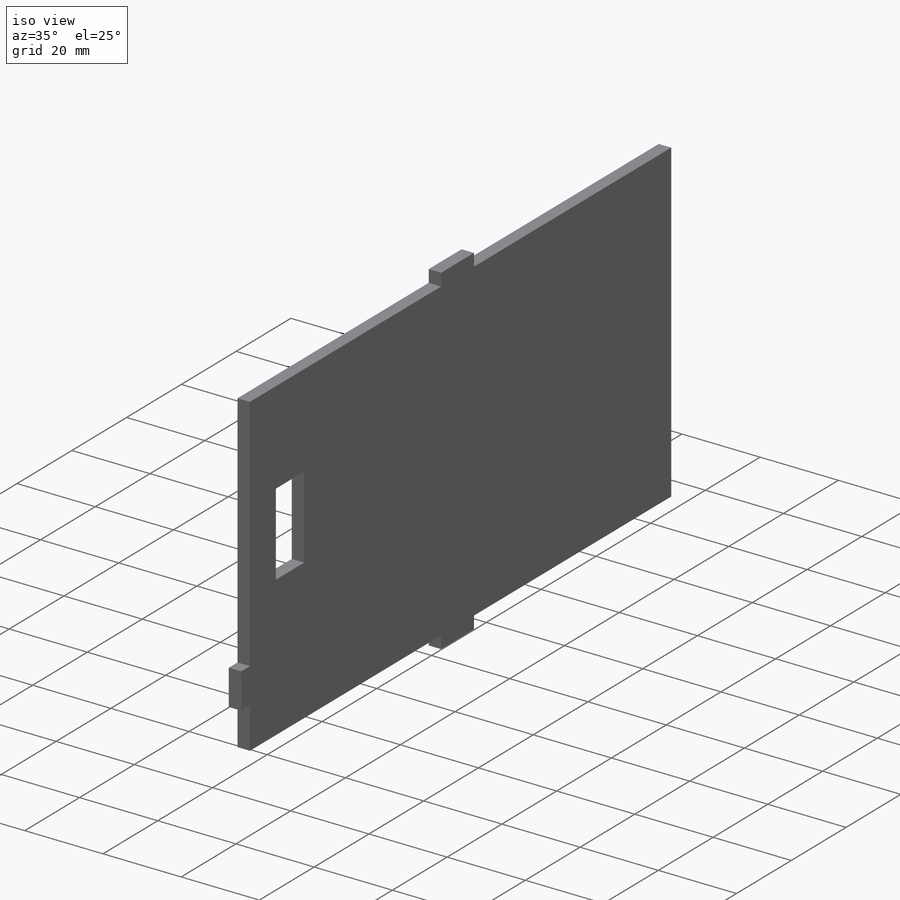
[diagram: iso view]
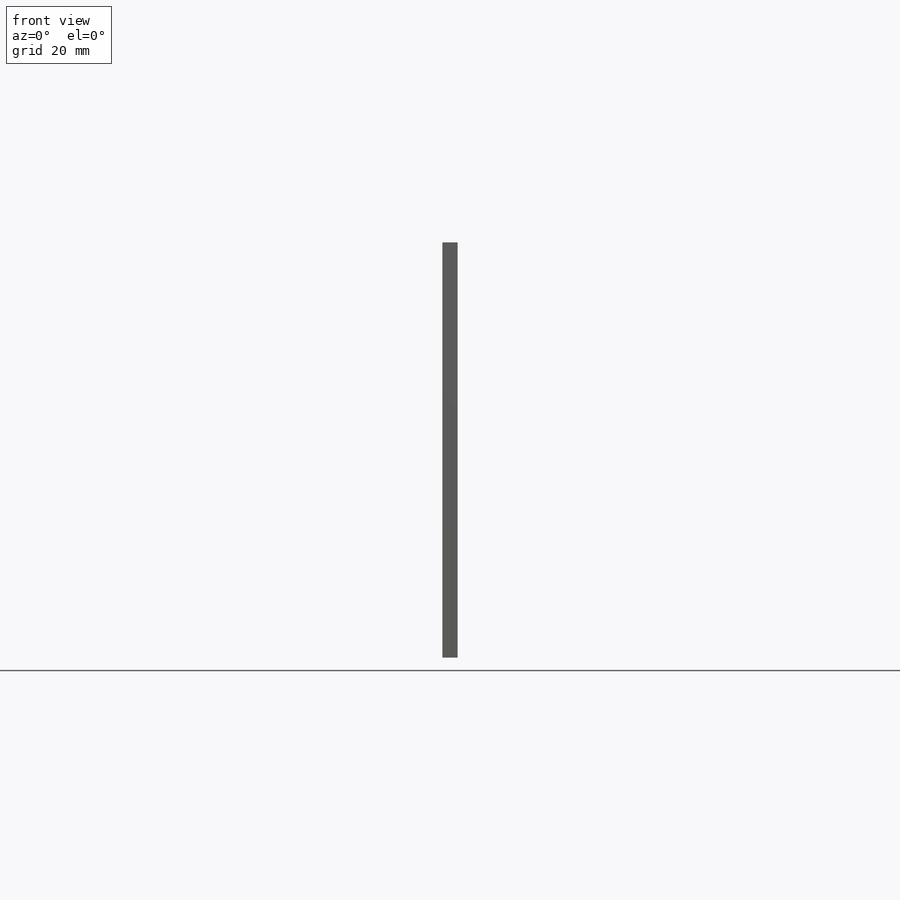
[diagram: front view]
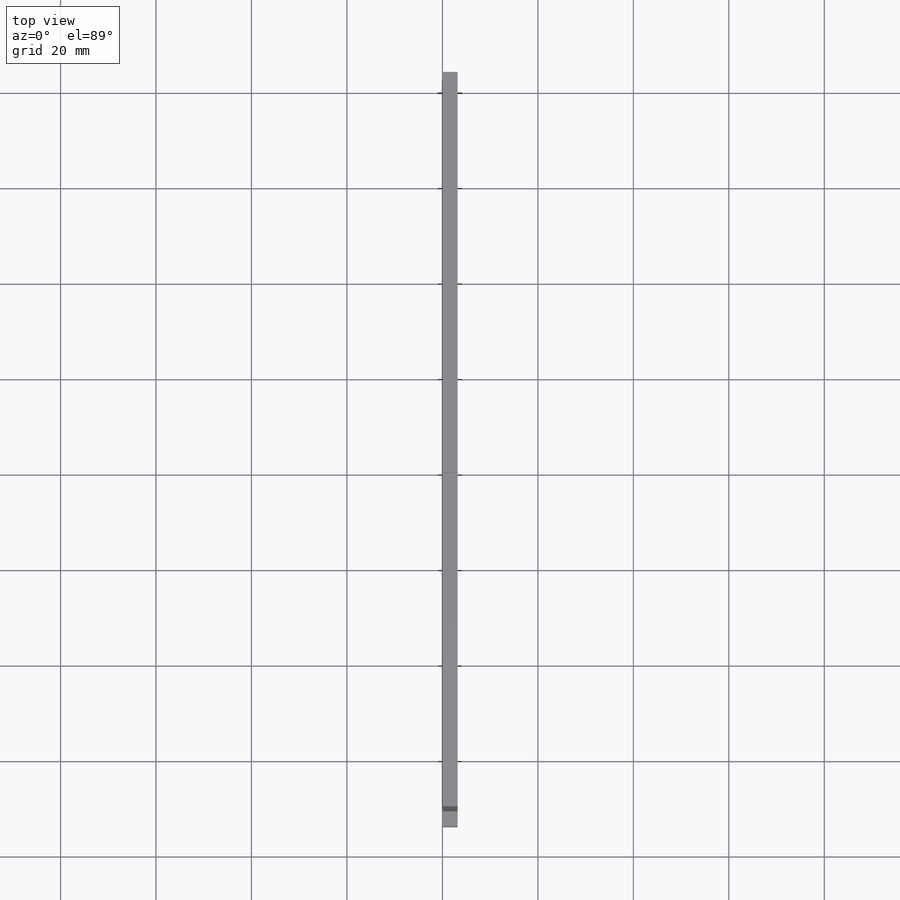
[diagram: top view]
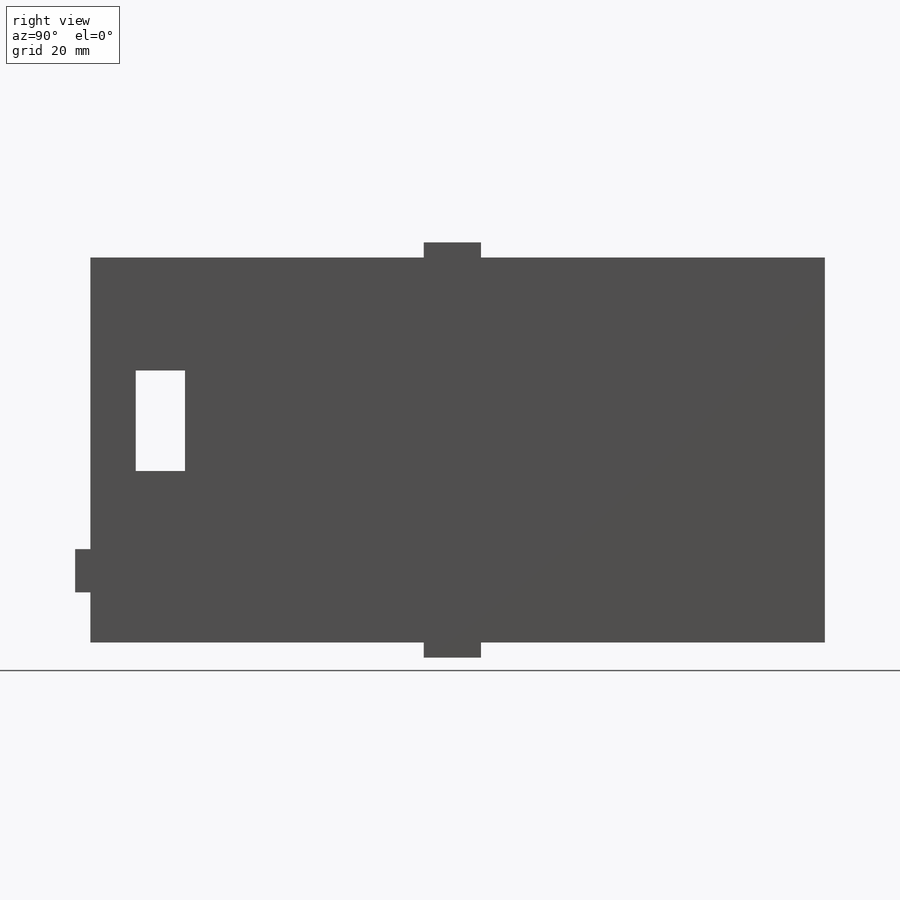
[diagram: right view]
SOLIDWORKS PART (.sldprt)
format: sldprt  version: not decoded by parser v0  size: 232,960 bytes
history: native  units: mm
features: sketch x8, extrude x5, cut_extrude x2, material x1, mirror x1 + 1 further entry (+11 scaffold rows collapsed)
feature tree (29):
  scaffold x11  (default folders/planes/origin — collapsed)
  material  "Material <not specified>"
  "Annotations"  RD1=13.9mm RD2=9.025mm RD3=12mm RD4=13.9mm
  sketch  "Sketch1"  dims[D1=40.325mm D2=38.1mm]
  extrude  "Boss-Extrude1"  Depth=3.175mm
  sketch  "Sketch3"  dims[D1=3.175mm D2=3.175mm D3=9.14mm D4=10.49mm D5=9.02mm]
  cut_extrude  "Cut-Extrude2"  [1 undecoded]
  sketch  "Sketch4"  dims[D1=13.9mm D2=12.2mm]
  sketch  "Sketch5"  dims[D1=12.0mm]
  extrude  "Boss-Extrude2"  Depth=3.175mm
  mirror  "Mirror1"
  sketch  "Sketch7"
  extrude  "Boss-Extrude3"  Depth=63mm
  sketch  "Sketch8"
  extrude  "Boss-Extrude4"  [1 undecoded]
  sketch  "Sketch9"  dims[D1=10.49mm]
  extrude  "Boss-Extrude5"  Depth=3.18mm
  sketch  "Sketch10"
  cut_extrude  "Cut-Extrude3"  Depth=3.18mm
decode coverage: 10 of 16 modeling features carry decoded parameters; 1 rows unclassified (native names shown)
note: 2 parameter values undecoded
note: suppression state not decoded; provenance and decode notes live in map.json
